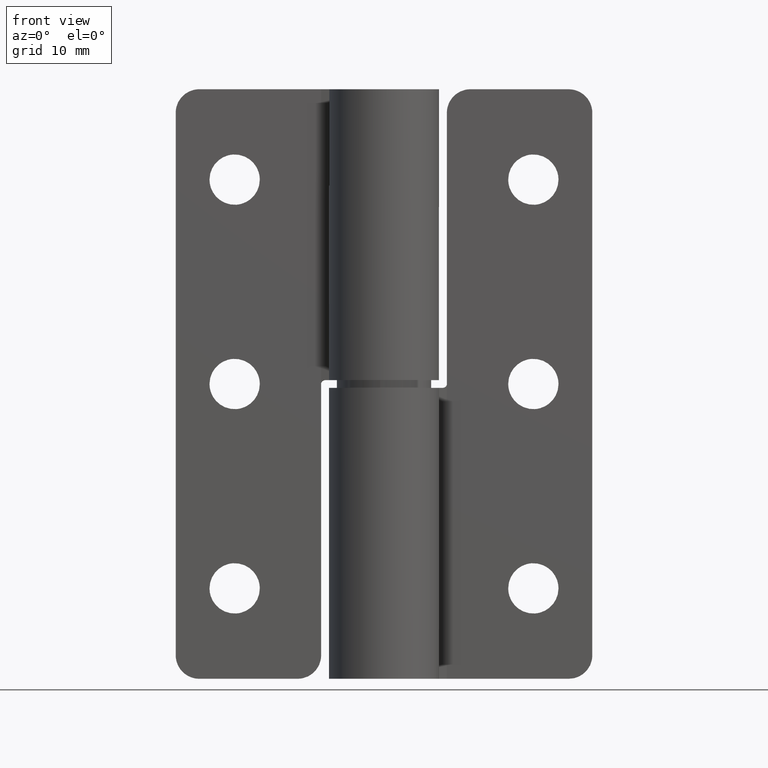
[diagram: clean part render]
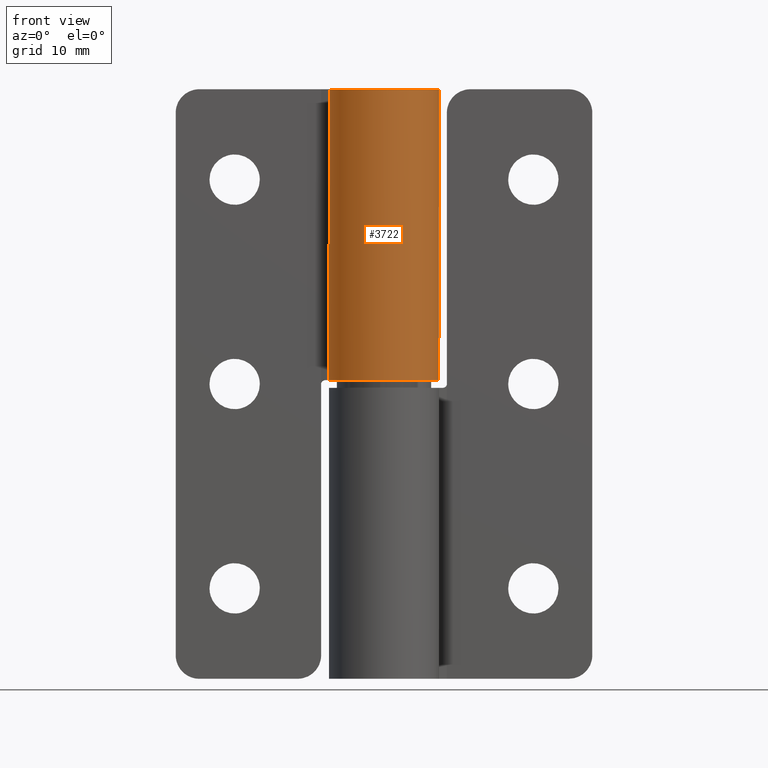
[diagram: same view with one face highlighted and labeled with its STEP entity id]
A machine part, front view. The second image highlights one B-rep face of the part: STEP entity #3722.
In plain terms, the highlighted face is a freeform B-spline surface patch.
Its self-contained STEP definition (entity closure, byte-faithful):
#3392=CARTESIAN_POINT('',(0.843147540197751,6.949036064468070,37.999999999998600));
#3393=VERTEX_POINT('',#3392);
#3399=CARTESIAN_POINT('',(-5.229044499477650,4.653718257866180,38.000000000008150));
#3400=VERTEX_POINT('',#3399);
#3401=CARTESIAN_POINT('',(-5.229044499477650,4.653718257866180,38.000000000008150));
#3402=CARTESIAN_POINT('',(-5.567535008917089,4.273524635012723,38.000000000008797));
#3403=CARTESIAN_POINT('',(-5.977221014635211,3.697177858848689,38.000000000009251));
#3404=CARTESIAN_POINT('',(-6.480199487247885,2.700954582963915,38.000000000010360));
#3405=CARTESIAN_POINT('',(-6.794627757019551,1.805511508086720,38.000000000010061));
#3406=CARTESIAN_POINT('',(-6.973984800072457,0.800620075660764,38.000000000011632));
#3407=CARTESIAN_POINT('',(-7.018291591969150,-0.145250108814866,38.000000000010402));
#3408=CARTESIAN_POINT('',(-6.935652153840090,-1.138290469646007,38.000000000011298));
#3409=CARTESIAN_POINT('',(-6.699663997819438,-2.107235541559945,38.000000000010182));
#3410=CARTESIAN_POINT('',(-6.286341138742512,-3.144775669699356,38.000000000010303));
#3411=CARTESIAN_POINT('',(-5.715146795477097,-4.108692005212050,38.000000000008022));
#3412=CARTESIAN_POINT('',(-4.820324539743946,-5.135679247450331,38.000000000008043));
#3413=CARTESIAN_POINT('',(-3.935520221337319,-5.825068716585081,38.000000000005983));
#3414=CARTESIAN_POINT('',(-3.001557705663875,-6.342529055618303,38.000000000004732));
#3415=CARTESIAN_POINT('',(-1.988619595895419,-6.754961270812553,38.000000000003091));
#3416=CARTESIAN_POINT('',(-0.625494606969242,-7.030747477382560,38.000000000001023));
#3417=CARTESIAN_POINT('',(0.812763732241703,-6.996417584148937,37.999999999998707));
#3418=CARTESIAN_POINT('',(2.190778512387274,-6.694134909539806,37.999999999996632));
#3419=CARTESIAN_POINT('',(3.376961582372943,-6.181193396209205,37.999999999994699));
#3420=CARTESIAN_POINT('',(4.320227589680407,-5.535302598234797,37.999999999993250));
#3421=CARTESIAN_POINT('',(5.130245325079819,-4.802547820192744,37.999999999991992));
#3422=CARTESIAN_POINT('',(5.900615173874751,-3.859245515944103,37.999999999990763));
#3423=CARTESIAN_POINT('',(6.583588566505370,-2.537823468632059,37.999999999989683));
#3424=CARTESIAN_POINT('',(6.939291782514593,-1.194210001088370,37.999999999989122));
#3425=CARTESIAN_POINT('',(7.026503246390019,0.018320805640678,37.999999999989008));
#3426=CARTESIAN_POINT('',(6.948087943952372,1.011673695344114,37.999999999989107));
#3427=CARTESIAN_POINT('',(6.747076997145890,1.937270598744518,37.999999999989463));
#3428=CARTESIAN_POINT('',(6.346078527345539,3.058204356110063,37.999999999990038));
#3429=CARTESIAN_POINT('',(5.709981761703999,4.129406354282664,37.999999999991083));
#3430=CARTESIAN_POINT('',(4.912779288619445,5.014159553341192,37.999999999992319));
#3431=CARTESIAN_POINT('',(4.193282040990921,5.629730033801016,37.999999999993413));
#3432=CARTESIAN_POINT('',(3.317897437685891,6.200601229352507,37.999999999994849));
#3433=CARTESIAN_POINT('',(2.179967689412161,6.697362749023579,37.999999999996490));
#3434=CARTESIAN_POINT('',(1.300351685868638,6.893619956720221,37.999999999998039));
#3435=CARTESIAN_POINT('',(0.843147540197751,6.949036064468070,37.999999999998600));
#3436=B_SPLINE_CURVE_WITH_KNOTS('',3,(#3401,#3402,#3403,#3404,#3405,#3406,#3407,#3408,#3409,#3410,#3411,#3412,#3413,#3414,#3415,#3416,#3417,#3418,#3419,#3420,#3421,#3422,#3423,#3424,#3425,#3426,#3427,#3428,#3429,#3430,#3431,#3432,#3433,#3434,#3435),.UNSPECIFIED.,.F.,.U.,(4,1,1,1,1,1,1,1,1,1,1,1,1,1,1,1,1,1,1,1,1,1,1,1,1,1,1,1,1,1,1,1,4),(0.000000264469371,1.527095834152021,2.108855567998489,3.345086615446782,4.363176315395393,5.163094905730453,6.181186108850657,7.344711675482053,8.144612414488581,9.526221027434254,10.689773060142080,12.216884088764930,12.871356144818780,13.889443455270680,15.489292470698750,17.016419163417410,18.179911926047009,19.706998427103059,20.870494952532180,21.597715830234080,22.979391006938151,24.506518664584458,26.033646018372160,27.124422949553409,28.142436244289311,29.015105833716980,29.960456130960239,31.705736904417378,32.723818643755422,33.523743857906979,34.541810735108939,35.850784261412457,37.232431264057659),.UNSPECIFIED.);
#3437=EDGE_CURVE('',#3400,#3393,#3436,.T.);
#3629=CARTESIAN_POINT('',(-5.229044499477650,4.653718257866171,75.000000000036593));
#3630=VERTEX_POINT('',#3629);
#3631=CARTESIAN_POINT('',(-5.229044499477650,4.653718257866180,38.000000000008150));
#3632=CARTESIAN_POINT('',(-5.229044499477650,4.653718257866171,75.000000000036593));
#3633=QUASI_UNIFORM_CURVE('',1,(#3631,#3632),.UNSPECIFIED.,.F.,.U.);
#3634=EDGE_CURVE('',#3400,#3630,#3633,.T.);
#3651=CARTESIAN_POINT('',(0.660954056744629,6.968725832943284,37.074999999987931));
#3652=CARTESIAN_POINT('',(0.660954056744629,6.968725832943284,75.948125000037834));
#3653=CARTESIAN_POINT('',(9.421843132681920,6.137792701811803,37.074999999987931));
#3654=CARTESIAN_POINT('',(9.421843132681920,6.137792701811803,75.948125000037834));
#3655=CARTESIAN_POINT('',(6.641435529247394,-2.211636070748199,37.074999999987931));
#3656=CARTESIAN_POINT('',(6.641435529247394,-2.211636070748199,75.948125000037834));
#3657=CARTESIAN_POINT('',(3.861027925812867,-10.561064843308198,37.074999999987931));
#3658=CARTESIAN_POINT('',(3.861027925812867,-10.561064843308198,75.948125000037834));
#3659=CARTESIAN_POINT('',(-3.648949906327832,-5.973706101063962,37.074999999987931));
#3660=CARTESIAN_POINT('',(-3.648949906327832,-5.973706101063962,75.948125000037834));
#3661=CARTESIAN_POINT('',(-11.158927738468529,-1.386347358819723,37.074999999987931));
#3662=CARTESIAN_POINT('',(-11.158927738468529,-1.386347358819723,75.948125000037834));
#3663=CARTESIAN_POINT('',(-4.999765272155789,4.899219042297499,37.074999999987931));
#3664=CARTESIAN_POINT('',(-4.999765272155789,4.899219042297499,75.948125000037834));
#3672=(BOUNDED_SURFACE()B_SPLINE_SURFACE(1,2,((#3651,#3653,#3655,#3657,#3659,#3661,#3663),(#3652,#3654,#3656,#3658,#3660,#3662,#3664)),.UNSPECIFIED.,.F.,.F.,.U.)B_SPLINE_SURFACE_WITH_KNOTS((2,2),(3,2,2,3),(0.0,38.873125000049903),(0.0,13.505596742891971,27.011193485783949,40.516790228675923),.UNSPECIFIED.)GEOMETRIC_REPRESENTATION_ITEM()RATIONAL_B_SPLINE_SURFACE(((1.0,0.622514636637620,1.0,0.622514636637620,1.0,0.622514636637620,1.0),(1.0,0.622514636637620,1.0,0.622514636637620,1.0,0.622514636637620,1.0)))REPRESENTATION_ITEM('')SURFACE());
#3673=ORIENTED_EDGE('',*,*,#3437,.T.);
#3674=CARTESIAN_POINT('',(0.843147540197748,6.949036064468050,75.000000000036593));
#3675=VERTEX_POINT('',#3674);
#3676=CARTESIAN_POINT('',(0.843147540197751,6.949036064468070,37.999999999998600));
#3677=CARTESIAN_POINT('',(0.843147540197748,6.949036064468050,75.000000000036593));
#3678=QUASI_UNIFORM_CURVE('',1,(#3676,#3677),.UNSPECIFIED.,.F.,.U.);
#3679=EDGE_CURVE('',#3393,#3675,#3678,.T.);
#3680=ORIENTED_EDGE('',*,*,#3679,.T.);
#3681=CARTESIAN_POINT('',(0.843147540197748,6.949036064468050,75.000000000036593));
#3682=CARTESIAN_POINT('',(1.228153984862157,6.902337435666095,75.000000000036678));
#3683=CARTESIAN_POINT('',(2.085681011588655,6.725083978096603,75.000000000036508));
#3684=CARTESIAN_POINT('',(3.392624233188009,6.186656248338614,75.000000000036650));
#3685=CARTESIAN_POINT('',(4.493283142389613,5.418996588129149,75.000000000036536));
#3686=CARTESIAN_POINT('',(5.296263956208282,4.607135356129789,75.000000000036579));
#3687=CARTESIAN_POINT('',(5.928445764569877,3.775864477810353,75.000000000037346));
#3688=CARTESIAN_POINT('',(6.459775151116721,2.790018630521475,75.000000000034447));
#3689=CARTESIAN_POINT('',(6.809260579038847,1.727124863356386,75.000000000039648));
#3690=CARTESIAN_POINT('',(7.000794601133540,0.626475157714561,75.000000000032870));
#3691=CARTESIAN_POINT('',(7.018821541970749,-0.468922239492666,75.000000000038256));
#3692=CARTESIAN_POINT('',(6.849919653304660,-1.549919751351906,75.000000000035456));
#3693=CARTESIAN_POINT('',(6.567272306148082,-2.479372516719491,75.000000000038753));
#3694=CARTESIAN_POINT('',(6.176542884559900,-3.342578478589023,75.000000000036266));
#3695=CARTESIAN_POINT('',(5.668783891146352,-4.142965603187220,75.000000000036621));
#3696=CARTESIAN_POINT('',(4.933150314410487,-5.015827898139150,75.000000000038611));
#3697=CARTESIAN_POINT('',(4.018549243719016,-5.784654548680722,75.000000000030667));
#3698=CARTESIAN_POINT('',(2.976494107535550,-6.363134186677295,75.000000000044565));
#3699=CARTESIAN_POINT('',(2.045071682079641,-6.715202836647508,75.000000000031974));
#3700=CARTESIAN_POINT('',(0.980988161568615,-6.966136037614988,75.000000000037360));
#3701=CARTESIAN_POINT('',(-0.381313929751510,-7.048281172523091,75.000000000036593));
#3702=CARTESIAN_POINT('',(-1.826651952099037,-6.810235183522812,75.000000000036451));
#3703=CARTESIAN_POINT('',(-3.051294440240663,-6.333722725513915,75.000000000036678));
#3704=CARTESIAN_POINT('',(-4.035717829019965,-5.754287736863438,75.000000000036536));
#3705=CARTESIAN_POINT('',(-4.937792989725065,-5.013069204769034,75.000000000036664));
#3706=CARTESIAN_POINT('',(-5.838583854005605,-3.957451288800839,75.000000000036593));
#3707=CARTESIAN_POINT('',(-6.509201425919281,-2.710398092346809,75.000000000036522));
#3708=CARTESIAN_POINT('',(-6.872489459892700,-1.472888547644732,75.000000000036636));
#3709=CARTESIAN_POINT('',(-7.001401137014597,-0.485158325877441,75.000000000036621));
#3710=CARTESIAN_POINT('',(-7.006418308469988,0.486015288778135,75.000000000036565));
#3711=CARTESIAN_POINT('',(-6.872088439216197,1.474201623570182,75.000000000036636));
#3712=CARTESIAN_POINT('',(-6.600174294052404,2.382224789781134,75.000000000036607));
#3713=CARTESIAN_POINT('',(-6.125803878132150,3.472559735111096,75.000000000036636));
#3714=CARTESIAN_POINT('',(-5.648229731859539,4.183072654507094,75.000000000036522));
#3715=CARTESIAN_POINT('',(-5.229044499477650,4.653718257866171,75.000000000036593));
#3716=B_SPLINE_CURVE_WITH_KNOTS('',3,(#3681,#3682,#3683,#3684,#3685,#3686,#3687,#3688,#3689,#3690,#3691,#3692,#3693,#3694,#3695,#3696,#3697,#3698,#3699,#3700,#3701,#3702,#3703,#3704,#3705,#3706,#3707,#3708,#3709,#3710,#3711,#3712,#3713,#3714,#3715),.UNSPECIFIED.,.F.,.U.,(4,1,1,1,1,1,1,1,1,1,1,1,1,1,1,1,1,1,1,1,1,1,1,1,1,1,1,1,1,1,1,1,4),(0.000000264474942,1.163496464239678,2.617896251126467,4.217732371452399,5.163094905734468,6.035729100692553,7.344711675485272,8.508205839438912,9.380799314111794,10.689773060144150,11.780548538524950,12.653195094547661,13.598564225885470,14.616647622013421,15.489292470699549,17.016419163417940,18.179911926047222,19.052517227314659,19.997863453836349,21.452257742405109,23.124829072133149,24.361068657249639,25.379164179568729,26.542676854979032,27.851632013139412,29.524119005292981,30.760365148541862,31.705736904417009,32.505657380639107,33.669176063204091,34.687271585714498,35.341753424378652,37.232431264057631),.UNSPECIFIED.);
#3717=EDGE_CURVE('',#3675,#3630,#3716,.T.);
#3718=ORIENTED_EDGE('',*,*,#3717,.T.);
#3719=ORIENTED_EDGE('',*,*,#3634,.F.);
#3720=EDGE_LOOP('',(#3673,#3680,#3718,#3719));
#3721=FACE_OUTER_BOUND('',#3720,.T.);
#3722=ADVANCED_FACE('',(#3721),#3672,.T.);